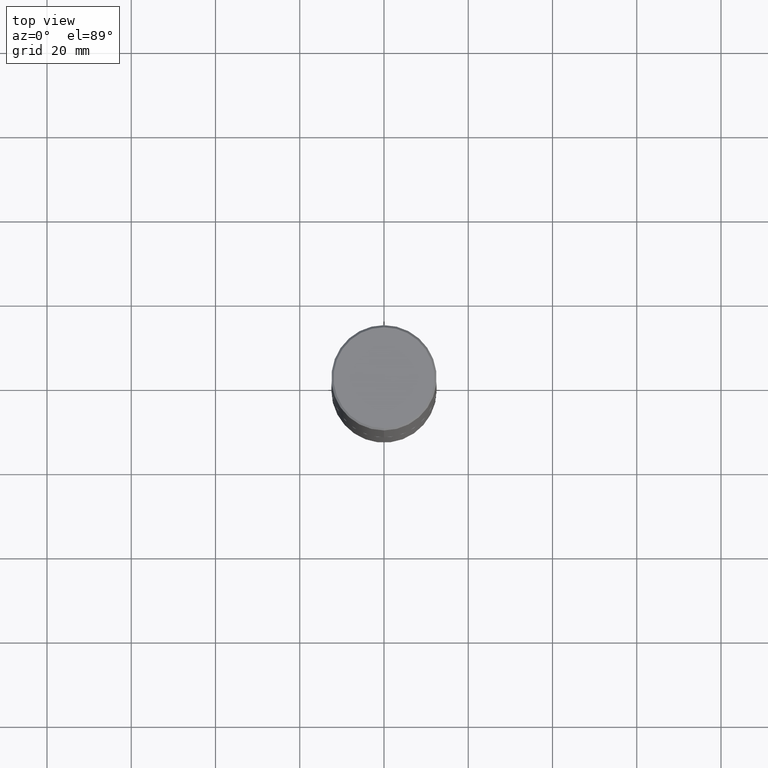
[diagram: clean part render]
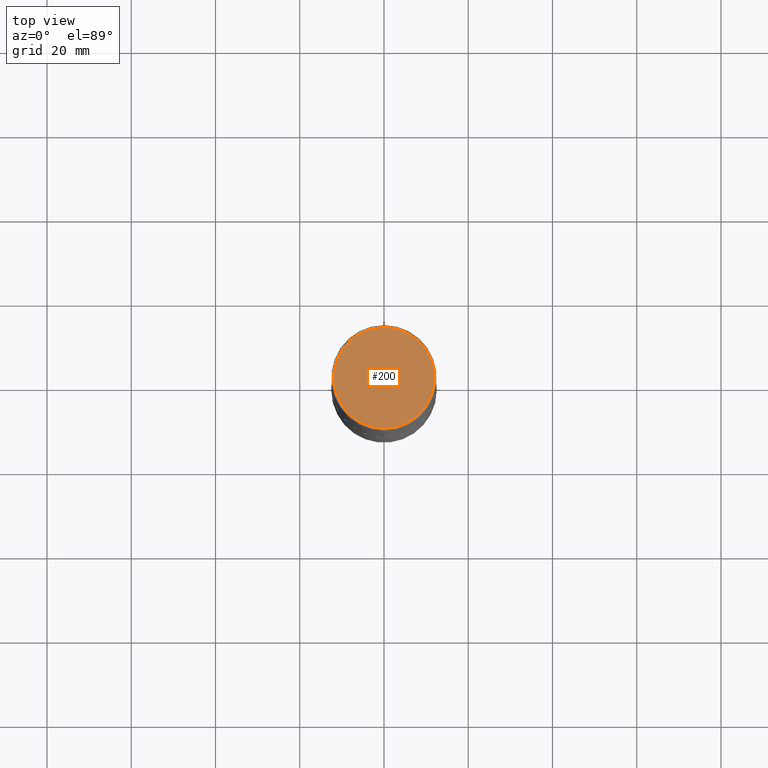
[diagram: same view with one face highlighted and labeled with its STEP entity id]
A machine part, top view. The second image highlights one B-rep face of the part: STEP entity #200.
In plain terms, the highlighted planar face has unit normal (0, -0, -1).
Its self-contained STEP definition (entity closure, byte-faithful):
#12 = CIRCLE ( 'NONE', #33, 0.4721499999999996255 ) ;
#15 = EDGE_CURVE ( 'NONE', #327, #346, #12, .T. ) ;
#22 = DIRECTION ( 'NONE',  ( -6.982962677686265922E-15, -1.000000000000000000, 3.490754157143982946E-15 ) ) ;
#33 = AXIS2_PLACEMENT_3D ( 'NONE', #165, #290, #44 ) ;
#36 = EDGE_LOOP ( 'NONE', ( #272, #378 ) ) ;
#44 = DIRECTION ( 'NONE',  ( -6.982962677686265922E-15, -1.000000000000000000, 3.490754157143982946E-15 ) ) ;
#62 = DIRECTION ( 'NONE',  ( 6.982962677686265922E-15, 1.000000000000000000, -3.490754157143982552E-15 ) ) ;
#68 = CIRCLE ( 'NONE', #213, 0.4721499999999996255 ) ;
#154 = CARTESIAN_POINT ( 'NONE',  ( 3.366835455046432084E-15, 0.4721499999999996255, -1.426540264649568516E-15 ) ) ;
#165 = CARTESIAN_POINT ( 'NONE',  ( -5.420756467185317189E-45, 7.736185299407739239E-31, 2.216193106459615290E-16 ) ) ;
#193 = CARTESIAN_POINT ( 'NONE',  ( 3.297005828269567997E-15, 0.4721499999999996255, -1.537349919972549256E-15 ) ) ;
#200 = ADVANCED_FACE ( 'NONE', ( #379 ), #256, .F. ) ;
#208 = AXIS2_PLACEMENT_3D ( 'NONE', #193, #380, #62 ) ;
#213 = AXIS2_PLACEMENT_3D ( 'NONE', #410, #348, #22 ) ;
#256 = PLANE ( 'NONE',  #208 ) ;
#272 = ORIENTED_EDGE ( 'NONE', *, *, #15, .T. ) ;
#290 = DIRECTION ( 'NONE',  ( -2.445976594451651952E-29, 3.490754157143982552E-15, 1.000000000000000000 ) ) ;
#326 = EDGE_CURVE ( 'NONE', #346, #327, #68, .T. ) ;
#327 = VERTEX_POINT ( 'NONE', #154 ) ;
#346 = VERTEX_POINT ( 'NONE', #374 ) ;
#348 = DIRECTION ( 'NONE',  ( -2.445976594451651952E-29, 3.490754157143982552E-15, 1.000000000000000000 ) ) ;
#374 = CARTESIAN_POINT ( 'NONE',  ( -3.307789109625541747E-15, -0.4721499999999996255, 1.869778885941491673E-15 ) ) ;
#378 = ORIENTED_EDGE ( 'NONE', *, *, #326, .T. ) ;
#379 = FACE_OUTER_BOUND ( 'NONE', #36, .T. ) ;
#380 = DIRECTION ( 'NONE',  ( 2.445976594451651392E-29, -3.490754157143982552E-15, -1.000000000000000000 ) ) ;
#410 = CARTESIAN_POINT ( 'NONE',  ( -5.420756467185317189E-45, 7.736185299407739239E-31, 2.216193106459615290E-16 ) ) ;